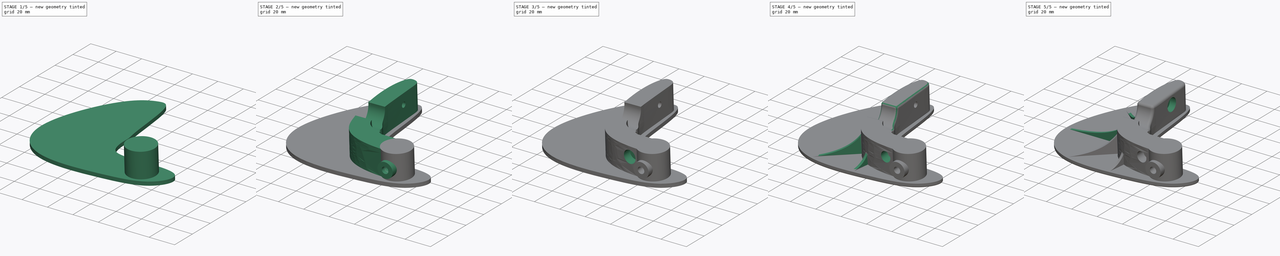
[diagram: build sequence overview — one tinted view per stage of 5, left to right]
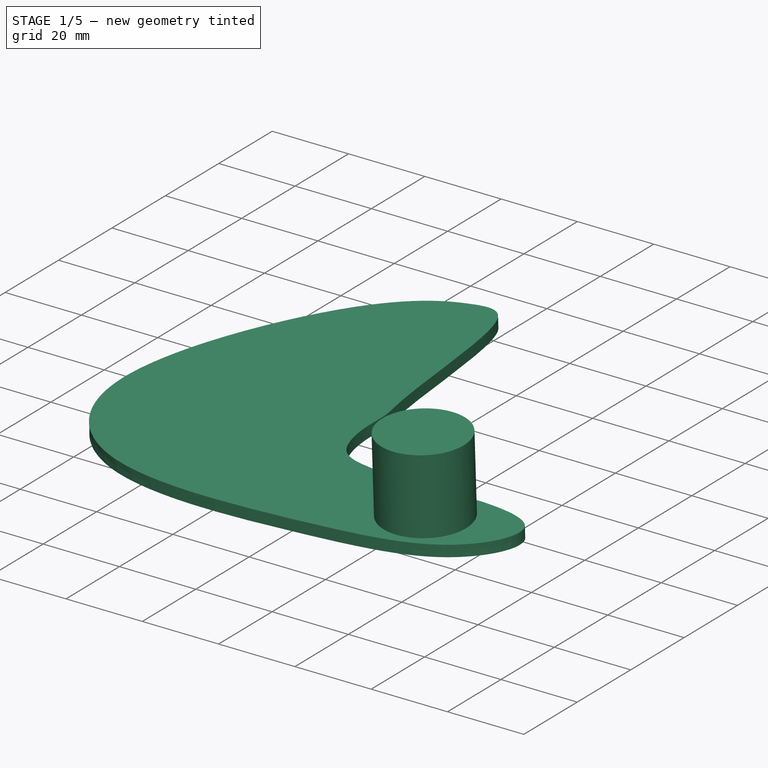
[diagram: stage 1 of 5 — iso view after this stage's code; geometry added in this stage tinted green]
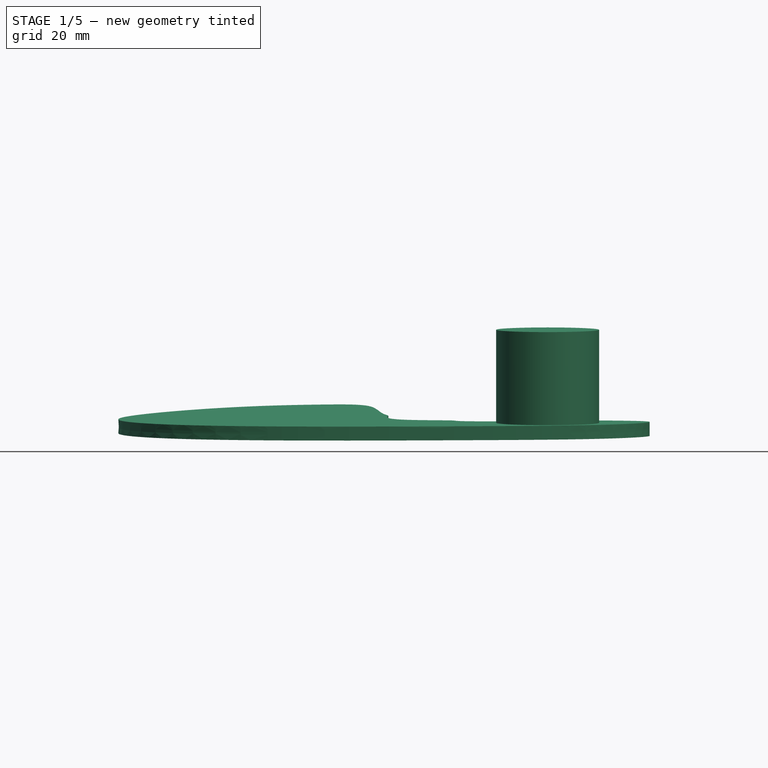
[diagram: stage 1 of 5 — front view after this stage's code; geometry added in this stage tinted green]
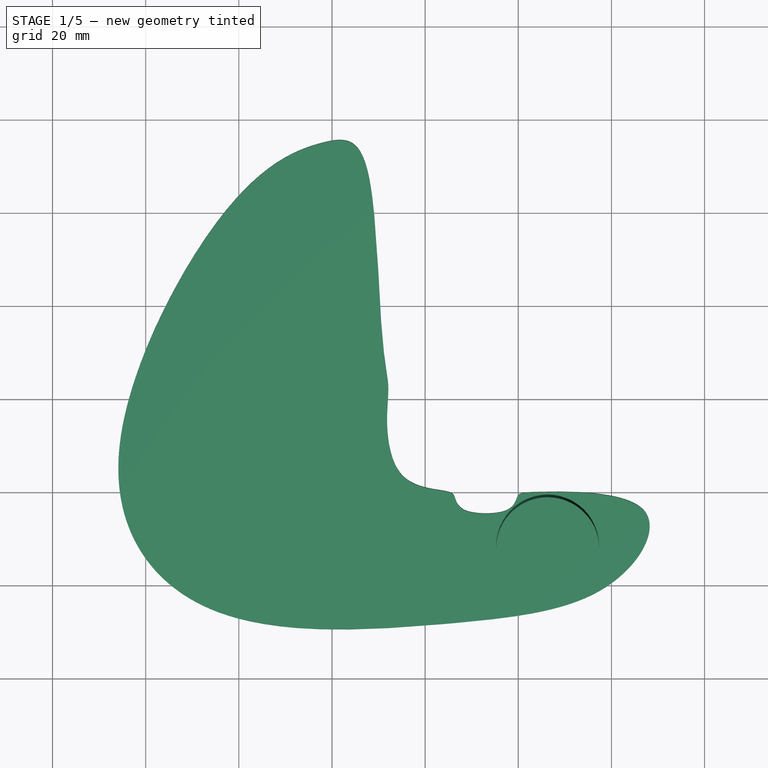
[diagram: stage 1 of 5 — top view after this stage's code; geometry added in this stage tinted green]
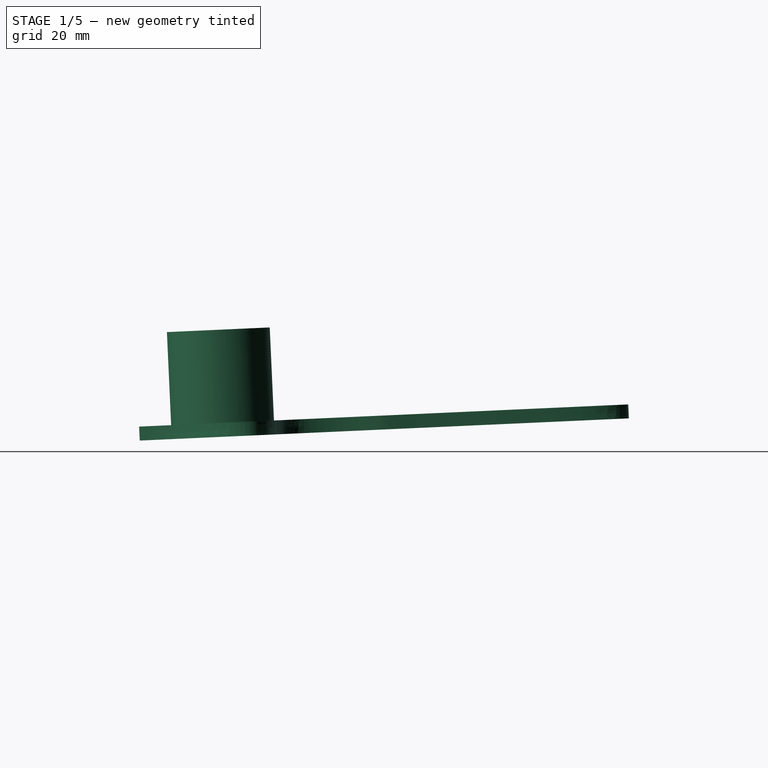
[diagram: stage 1 of 5 — right view after this stage's code; geometry added in this stage tinted green]
FCSTD DOCUMENT  (FreeCAD 0.19R24291 (Git))
Label: mezzo_pulpito
License: All rights reserved
LicenseURL: http://en.wikipedia.org/wiki/All_rights_reserved
objects: Sketcher::SketchObject×16, PartDesign::Plane×11, PartDesign::Pad×9, PartDesign::Pocket×6, PartDesign::ShapeBinder×4, PartDesign::Hole×2, Part::Feature×1, PartDesign::Fillet×1, PartDesign::Chamfer×1, PartDesign::Body×1, App::MeasureDistance×1
note: 71 computed .brp shape members not serialized (recipe doc carries the construction recipe); baked Part::Feature solids carry a one-line shape summary decoded from their .brp

FEATURE [Part::Feature] Part__Feature  label="Taranis_X9D"
  shape: bbox 579.6 x 653.2 x 579.6 mm, 3904 faces, 35 solids (baked)
FEATURE [PartDesign::ShapeBinder] CopyPart__Feature
  TraceSupport = false
FEATURE [PartDesign::ShapeBinder] CopyPart__Feature001
  TraceSupport = false
FEATURE [PartDesign::Plane] DatumPlane
  Length = 136.732
  MapMode = 45
  Placement = pos=(0,76.6965,-46.0705) rot=(0.022662,-0.022662,0.999486;1.57131rad)
  ResizeMode = 0
  Support = -> [CopyPart__Feature,CopyPart__Feature001]
  Width = 198.196
FEATURE [Sketcher::SketchObject] Sketch
  FullyConstrained = false
  MapMode = 5
  Placement = pos=(0,76.6965,-46.0705) rot=(0.022662,-0.022662,0.999486;1.57131rad)
  Support = -> [DatumPlane]
  sketch-geometry (38):
    g0-g17: Circle x18 (B-spline internal-alignment scaffolding for g18; pole/knot coordinates omitted)
    g18: BSplineCurve PolesCount=18 KnotsCount=19 Degree=3 IsPeriodic=1
    g19-g37: GeomPoint x19 (B-spline internal-alignment scaffolding for g18; pole/knot coordinates omitted)
  constraints (4):
    c: Weight(g0) = 1
    c: Equal(g0, g1-g17) x17
    c: InternalAlignment(g0-g17 -> g18) x18
    c: InternalAlignment(g19-g37 -> g18) x19
FEATURE [PartDesign::Pad] Pad
  AllowMultiFace = false
  Direction = (1,1,1)
  Length = 3
  Length2 = 100
  Placement = pos=(0,76.6965,-46.0705) rot=(0.022662,-0.022662,0.999486;1.57131rad)
  Profile = -> Sketch
  Type = 0
FEATURE [Sketcher::SketchObject] Sketch001
  FullyConstrained = false
  MapMode = 5
  Placement = pos=(0,76.6965,-46.0705) rot=(0.707016,0.707016,0.01603;3.17365rad)
  Support = -> [Pad]
  sketch-geometry (2):
    g0: Circle CenterX=-88.2214 CenterY=-53.695 CenterZ=0 NormalX=0 NormalY=0 NormalZ=1 AngleXU=0 Radius=5.1
    g1: Circle CenterX=-88.2214 CenterY=-53.695 CenterZ=0 NormalX=0 NormalY=0 NormalZ=1 AngleXU=0 Radius=11.0502
  constraints (2):
    c: Radius(g0) = 5.1
    c: Coincident(g1,g0)
FEATURE [PartDesign::Hole] Hole
  AllowMultiFace = false
  BaseFeature = -> Pad
  Depth = 25
  DepthType = 0
  Diameter = 10.2
  DrillForDepth = false
  DrillPoint = 1
  DrillPointAngle = 118
  HoleCutCountersinkAngle = 90
  HoleCutCustomValues = false
  HoleCutDepth = 0
  HoleCutDiameter = 0
  HoleCutType = 0
  ModelActualThread = false
  Placement = pos=(0,76.6965,-46.0705) rot=(0.022662,-0.022662,0.999486;1.57131rad)
  Profile = -> Sketch001
  Tapered = false
  TaperedAngle = 90
  ThreadAngle = 0
  ThreadClass = 0
  ThreadCutOffInner = 0
  ThreadCutOffOuter = 0
  ThreadDirection = 0
  ThreadFit = 0
  ThreadPitch = 0
  ThreadSize = 0
  ThreadType = 0
  Threaded = false
FEATURE [PartDesign::Pad] Pad001
  AllowMultiFace = false
  BaseFeature = -> Hole
  Direction = (1,1,1)
  Length = 20
  Length2 = 100
  Placement = pos=(0,76.6965,-46.0705) rot=(0.022662,-0.022662,0.999486;1.57131rad)
  Profile = -> Sketch001
  Reversed = true
  Type = 0
FEATURE [Sketcher::SketchObject] Sketch002
  ExternalGeometry = -> [Pad001]
  FullyConstrained = false
  MapMode = 5
  Placement = pos=(-2e-16,75.7901,-26.0911) rot=(0.022662,-0.022662,0.999486;1.57131rad)
  Support = -> [Pad001]
  sketch-geometry (1):
    g0: Circle CenterX=-88.2214 CenterY=53.695 CenterZ=0 NormalX=0 NormalY=0 NormalZ=1 AngleXU=0 Radius=11.0502
  constraints (2):
    c: Coincident(g0,g-3)
    c: Equal(g0,g-4)
FEATURE [PartDesign::Pad] Pad002
  AllowMultiFace = false
  BaseFeature = -> Pad001
  Direction = (1,1,1)
  Length = 3
  Length2 = 100
  Placement = pos=(0,76.6965,-46.0705) rot=(0.022662,-0.022662,0.999486;1.57131rad)
  Profile = -> Sketch002
  Type = 0
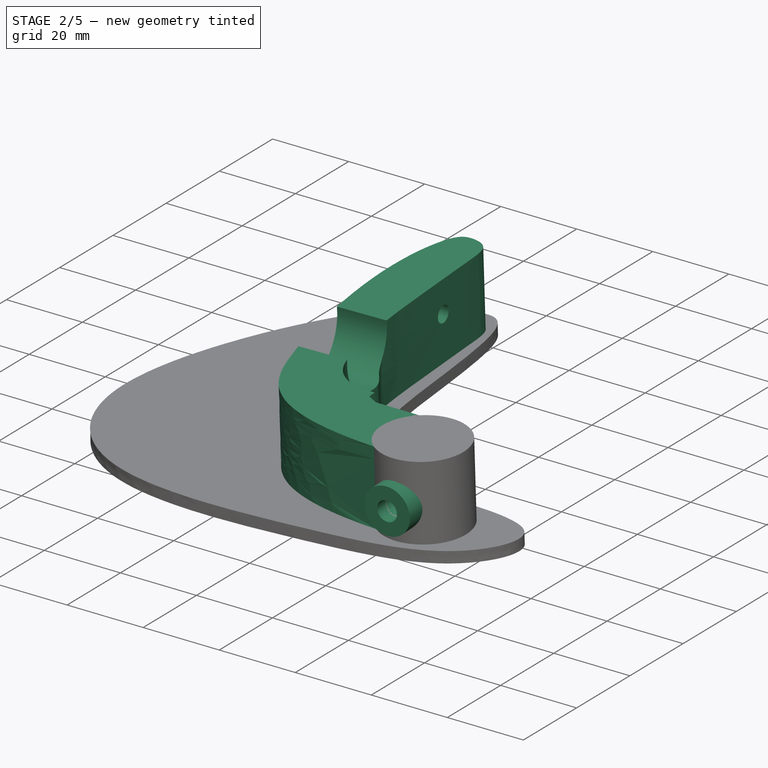
[diagram: stage 2 of 5 — iso view after this stage's code; geometry added in this stage tinted green]
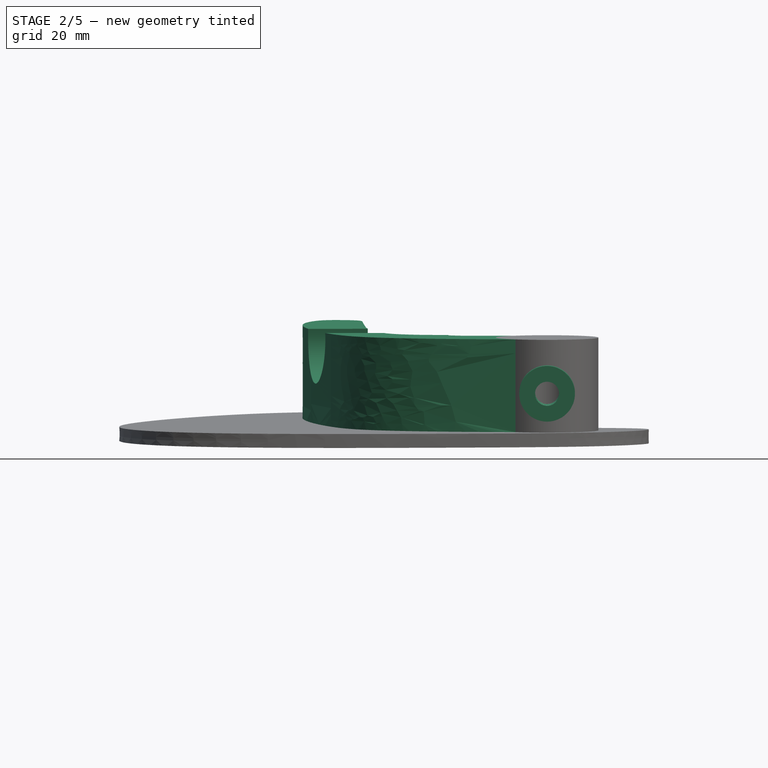
[diagram: stage 2 of 5 — front view after this stage's code; geometry added in this stage tinted green]
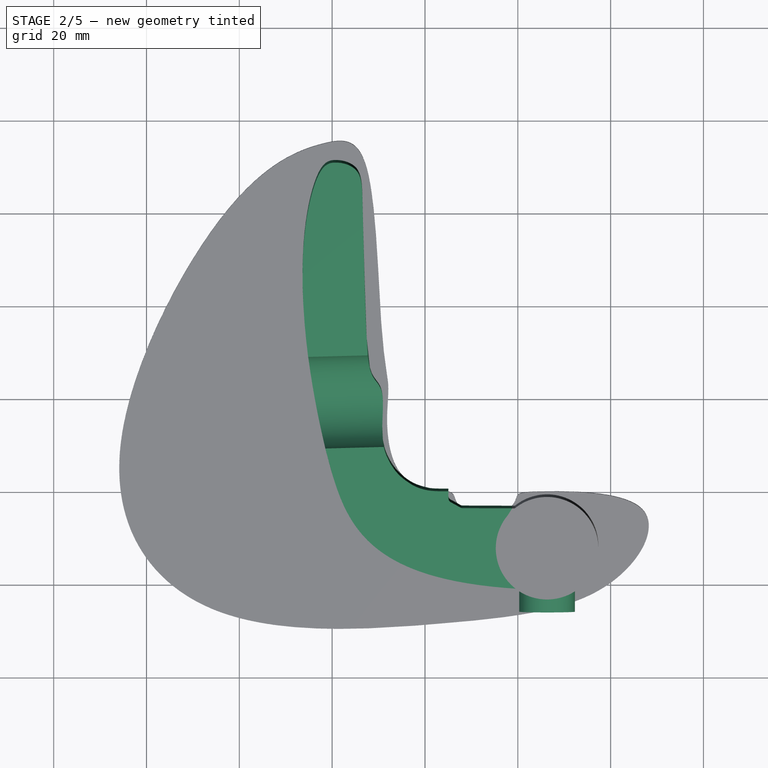
[diagram: stage 2 of 5 — top view after this stage's code; geometry added in this stage tinted green]
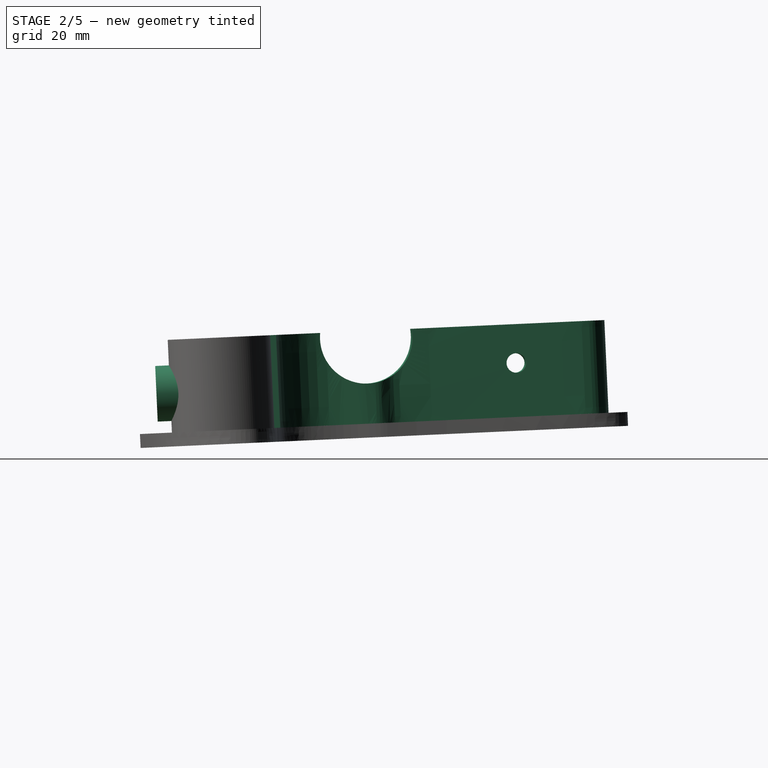
[diagram: stage 2 of 5 — right view after this stage's code; geometry added in this stage tinted green]
FEATURE [PartDesign::Plane] DatumPlane001
  AttachmentOffset = pos=(0,-6,0) rot=(1,0,0;1.5708rad)
  Length = 194.325
  MapMode = 45
  Placement = pos=(-53.695,-17.9493,-38.8527) rot=(1,0,0;1.61614rad)
  ResizeMode = 0
  Support = -> [Pad002]
  Width = 104.082
FEATURE [Sketcher::SketchObject] Sketch003
  FullyConstrained = true
  MapMode = 5
  Placement = pos=(-53.695,-17.9493,-38.8527) rot=(1,0,0;1.61614rad)
  Support = -> [DatumPlane001]
  sketch-geometry (2):
    g0: Circle CenterX=0 CenterY=0 CenterZ=0 NormalX=0 NormalY=0 NormalZ=1 AngleXU=0 Radius=6
    g1: Circle CenterX=0 CenterY=0 CenterZ=0 NormalX=0 NormalY=0 NormalZ=1 AngleXU=0 Radius=2.6
  constraints (4):
    c: Coincident(g0,g-1)
    c: Coincident(g1,g0)
    c: Radius(g0) = 6
    c: Radius(g1) = 2.6
FEATURE [PartDesign::Pad] Pad003
  AllowMultiFace = false
  BaseFeature = -> Pad002
  Direction = (1,1,1)
  Length = 8
  Length2 = 100
  Placement = pos=(0,76.6965,-46.0705) rot=(0.022662,-0.022662,0.999486;1.57131rad)
  Profile = -> Sketch003
  Type = 0
FEATURE [PartDesign::Pocket] Pocket
  AllowMultiFace = false
  BaseFeature = -> Pad003
  Length = 10
  Length2 = 100
  Placement = pos=(0,76.6965,-46.0705) rot=(0.022662,-0.022662,0.999486;1.57131rad)
  Profile = -> Pad003 [Face15]
  Type = 0
FEATURE [Sketcher::SketchObject] Sketch004
  FullyConstrained = false
  MapMode = 5
  Placement = pos=(1e-16,76.5606,-43.0736) rot=(0.022662,-0.022662,0.999486;1.57131rad)
  Support = -> [Pad003]
  sketch-geometry (61):
    g0: LineSegment StartX=-79.6202 StartY=59.9978 StartZ=0 EndX=-79.6202 EndY=61.2114 EndZ=0
    g1: Circle CenterX=-79.6202 CenterY=61.2114 CenterZ=0 NormalX=0 NormalY=0 NormalZ=1 AngleXU=0 Radius=1
    g2: Circle CenterX=-79.5852 CenterY=64.6616 CenterZ=0 NormalX=0 NormalY=0 NormalZ=1 AngleXU=0 Radius=1
    g3: Circle CenterX=-79.581 CenterY=71.4159 CenterZ=0 NormalX=0 NormalY=0 NormalZ=1 AngleXU=0 Radius=1
    g4: BSplineCurve PolesCount=3 KnotsCount=2 Degree=2 IsPeriodic=0
    g5: GeomPoint X=-79.6202 Y=61.2114 Z=0
    g6: GeomPoint X=-79.581 Y=71.4159 Z=0
    g7: LineSegment StartX=-96.9647 StartY=59.9978 StartZ=0 EndX=-79.6202 EndY=59.9978 EndZ=0
    g8: LineSegment StartX=-79.5025 StartY=72.2644 StartZ=0 EndX=-78.4214 EndY=74.2117 EndZ=0
    g9: Circle CenterX=-78.4214 CenterY=74.2117 CenterZ=0 NormalX=0 NormalY=0 NormalZ=1 AngleXU=0 Radius=0.08
    g10: Circle CenterX=-77.4826 CenterY=74.9581 CenterZ=0 NormalX=0 NormalY=0 NormalZ=1 AngleXU=0 Radius=0.08
    g11: LineSegment StartX=-77.4826 StartY=74.9581 StartZ=0 EndX=-75.9318 EndY=74.9543 EndZ=0
    g12: LineSegment StartX=-75.9318 StartY=74.9543 StartZ=0 EndX=-75.9318 EndY=76.6216 EndZ=0
    g13: Circle CenterX=-78.4214 CenterY=74.2117 CenterZ=0 NormalX=0 NormalY=0 NormalZ=1 AngleXU=0 Radius=1
    g14: Circle CenterX=-78.1398 CenterY=74.9293 CenterZ=0 NormalX=0 NormalY=0 NormalZ=1 AngleXU=0 Radius=1
    g15: Circle CenterX=-77.4826 CenterY=74.9581 CenterZ=0 NormalX=0 NormalY=0 NormalZ=1 AngleXU=0 Radius=1
    g16: BSplineCurve PolesCount=3 KnotsCount=2 Degree=2 IsPeriodic=0
    g17: GeomPoint X=-78.4214 Y=74.2117 Z=0
    g18: GeomPoint X=-77.4826 Y=74.9581 Z=0
    g19-g22: Circle x4 (B-spline internal-alignment scaffolding for g23; pole/knot coordinates omitted)
    g23: BSplineCurve PolesCount=4 KnotsCount=2 Degree=3 IsPeriodic=0
    g24: GeomPoint X=-79.581 Y=71.4159 Z=0
    g25: GeomPoint X=-79.5025 Y=72.2644 Z=0
    g26-g43: Circle x18 (B-spline internal-alignment scaffolding for g44; pole/knot coordinates omitted)
    g44: BSplineCurve PolesCount=18 KnotsCount=16 Degree=3 IsPeriodic=0
    g45-g60: GeomPoint x16 (B-spline internal-alignment scaffolding for g44; pole/knot coordinates omitted)
  constraints (43):
    c: Vertical(g0)
    c: Coincident(g4,g0)
    c: Weight(g1) = 1
    c: Equal(g1,g2)
    c: Equal(g1,g3)
    c: InternalAlignment(g1,g4)
    c: InternalAlignment(g2,g4)
    c: InternalAlignment(g3,g4)
    c: InternalAlignment(g5,g4)
    c: InternalAlignment(g6,g4)
    c: Coincident(g7,g0)
    c: Horizontal(g7)
    c: Coincident(g9,g8)
    c: Radius(g9) = 0.08
    c: Equal(g9,g10)
    c: Coincident(g11,g10)
    c: Coincident(g11,g12)
    c: Vertical(g12)
    c: Coincident(g16,g8)
    c: Weight(g13) = 1
    c: Equal(g13,g14)
    c: Equal(g13,g15)
    c: Coincident(g16,g11)
    c: InternalAlignment(g13,g16)
    c: InternalAlignment(g14,g16)
    c: InternalAlignment(g15,g16)
    c: InternalAlignment(g17,g16)
    c: InternalAlignment(g18,g16)
    c: Coincident(g23,g4)
    c: Weight(g19) = 1
    c: Equal(g19,g20)
    c: Equal(g19,g21)
    c: Equal(g19,g22)
    c: Coincident(g23,g8)
    c: InternalAlignment(g19-g22 -> g23) x4
    c: InternalAlignment(g24,g23)
    c: InternalAlignment(g25,g23)
    c: Weight(g26) = 1
    c: Equal(g26, g27-g43) x17
    c: Coincident(g44,g7)
    c: InternalAlignment(g26-g43 -> g44) x18
    c: InternalAlignment(g45-g60 -> g44) x16
    c: Coincident(g12,g44)
FEATURE [PartDesign::Pad] Pad004
  AllowMultiFace = false
  BaseFeature = -> Pocket
  Direction = (1,1,1)
  Length = 20
  Length2 = 100
  Placement = pos=(0,76.6965,-46.0705) rot=(0.022662,-0.022662,0.999486;1.57131rad)
  Profile = -> Sketch004
  Type = 0
FEATURE [PartDesign::ShapeBinder] CopyPart__Feature002
  TraceSupport = false
FEATURE [PartDesign::Plane] DatumPlane002
  AttachmentOffset = pos=(0,0,-10) rot=(0,0,1;0rad)
  Length = 95.8487
  MapMode = 45
  Placement = pos=(-102.922,51.3342,-32.5186) rot=(0.707377,0.013562,0.706706;3.1517rad)
  ResizeMode = 0
  Support = -> [CopyPart__Feature002]
  Width = 129.985
FEATURE [Sketcher::SketchObject] Sketch005
  FullyConstrained = false
  MapMode = 5
  Placement = pos=(-102.922,51.3342,-32.5186) rot=(0.707377,0.013562,0.706706;3.1517rad)
  Support = -> [DatumPlane002]
  sketch-geometry (2):
    g0: Circle CenterX=-0.04256 CenterY=-0.002853 CenterZ=0 NormalX=0 NormalY=0 NormalZ=1 AngleXU=0 Radius=2.1
    g1: Circle CenterX=5.11532 CenterY=32.4609 CenterZ=0 NormalX=0 NormalY=0 NormalZ=1 AngleXU=0 Radius=10
  constraints (2):
    c: Radius(g0) = 2.1
    c: Radius(g1) = 10
FEATURE [PartDesign::Pocket] Pocket001
  AllowMultiFace = false
  BaseFeature = -> Pad004
  Length = 5
  Length2 = 100
  Placement = pos=(0,76.6965,-46.0705) rot=(0.022662,-0.022662,0.999486;1.57131rad)
  Profile = -> Sketch005
  Type = 4
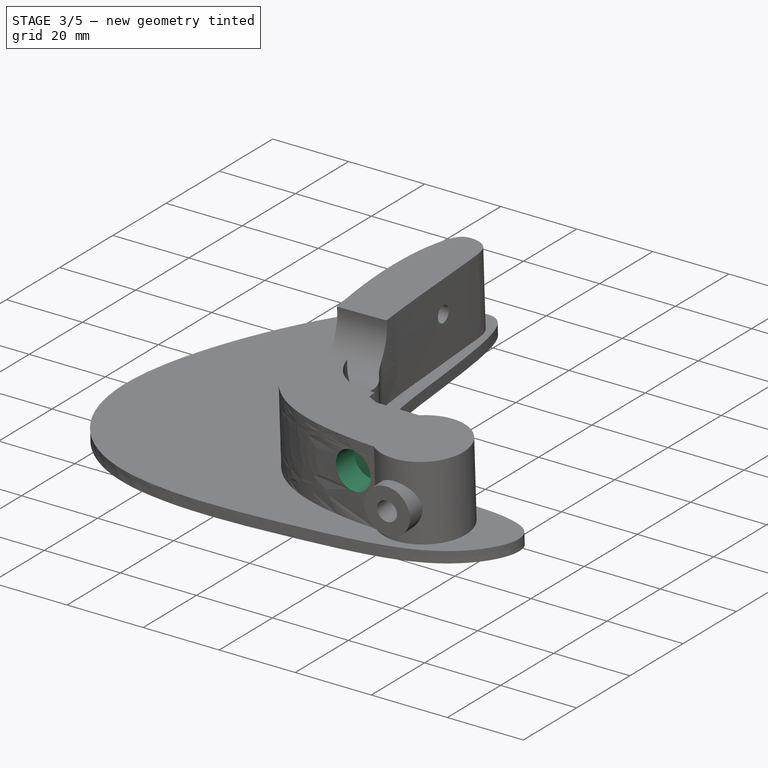
[diagram: stage 3 of 5 — iso view after this stage's code; geometry added in this stage tinted green]
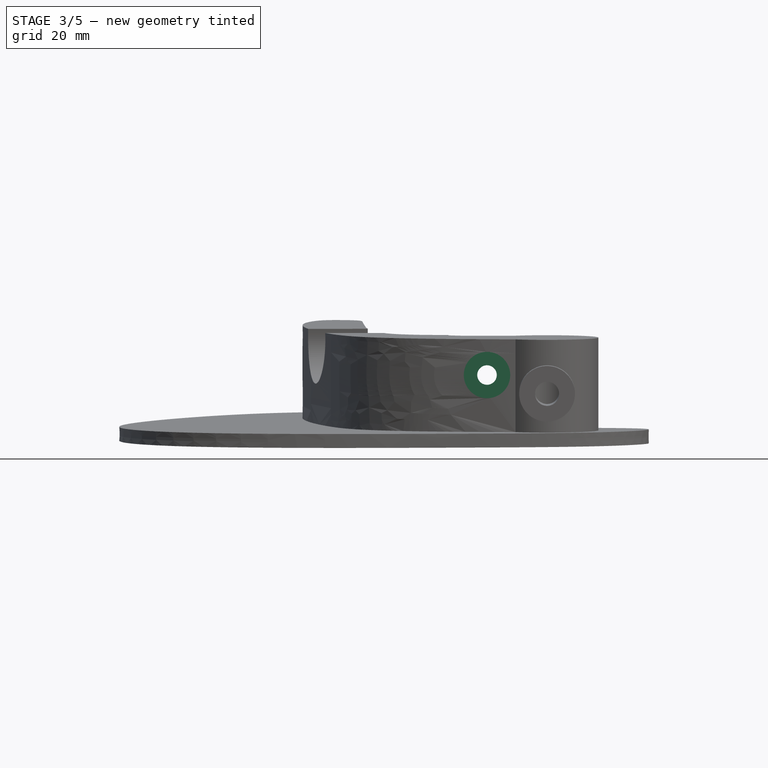
[diagram: stage 3 of 5 — front view after this stage's code; geometry added in this stage tinted green]
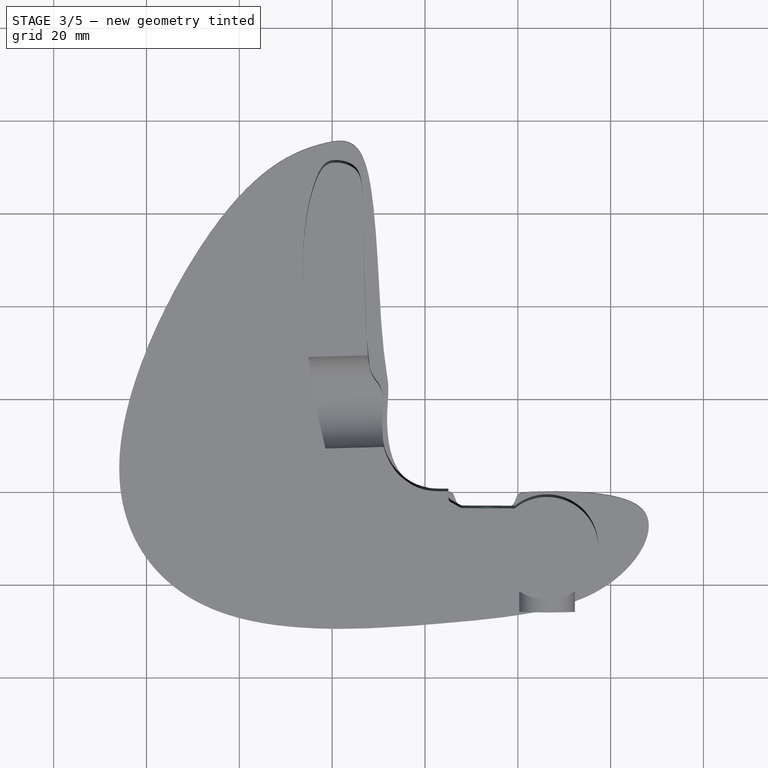
[diagram: stage 3 of 5 — top view after this stage's code; geometry added in this stage tinted green]
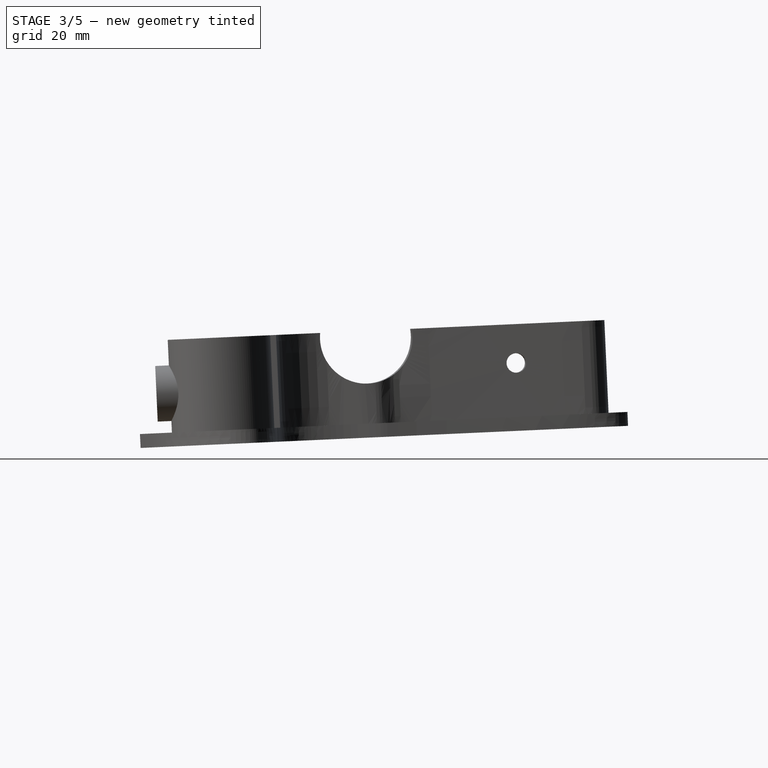
[diagram: stage 3 of 5 — right view after this stage's code; geometry added in this stage tinted green]
FEATURE [Sketcher::SketchObject] Sketch006
  FullyConstrained = false
  MapMode = 5
  Placement = pos=(-102.922,51.3342,-32.5186) rot=(0.707377,0.013562,0.706706;3.1517rad)
  Support = -> [DatumPlane002]
  sketch-geometry (1):
    g0: Circle CenterX=0.03682 CenterY=0.000535 CenterZ=0 NormalX=0 NormalY=0 NormalZ=1 AngleXU=0 Radius=5
  constraints (1):
    c: Radius(g0) = 5
FEATURE [PartDesign::Pocket] Pocket002
  AllowMultiFace = false
  BaseFeature = -> Pocket001
  Length = 5
  Length2 = 100
  Placement = pos=(0,76.6965,-46.0705) rot=(0.022662,-0.022662,0.999486;1.57131rad)
  Profile = -> Sketch006
  Type = 0
FEATURE [PartDesign::ShapeBinder] CopyPart__Feature003
  TraceSupport = false
FEATURE [PartDesign::Plane] DatumPlane003
  AttachmentOffset = pos=(0,0,10) rot=(0,0,1;0rad)
  Length = 193.626
  MapMode = 5
  Placement = pos=(0,-12.6364,-2.5e-15) rot=(1,0,0;1.5708rad)
  ResizeMode = 0
  Support = -> [CopyPart__Feature003]
  Width = 98.6541
FEATURE [Sketcher::SketchObject] Sketch007
  FullyConstrained = false
  MapMode = 5
  Placement = pos=(0,-12.6364,-2.5e-15) rot=(1,0,0;1.5708rad)
  Support = -> [DatumPlane003]
  sketch-geometry (1):
    g0: Circle CenterX=-66.6371 CenterY=-35.1715 CenterZ=0 NormalX=0 NormalY=0 NormalZ=1 AngleXU=0 Radius=5
  constraints (1):
    c: Radius(g0) = 5
FEATURE [PartDesign::Pocket] Pocket003
  AllowMultiFace = false
  BaseFeature = -> Pocket002
  Length = 10
  Length2 = 100
  Placement = pos=(0,76.6965,-46.0705) rot=(0.022662,-0.022662,0.999486;1.57131rad)
  Profile = -> Sketch007
  Reversed = true
  Type = 0
FEATURE [PartDesign::Hole] Hole001
  AllowMultiFace = false
  BaseFeature = -> Pocket003
  Depth = 25
  DepthType = 0
  Diameter = 4.2
  DrillForDepth = false
  DrillPoint = 1
  DrillPointAngle = 118
  HoleCutCountersinkAngle = 90
  HoleCutCustomValues = false
  HoleCutDepth = 0
  HoleCutDiameter = 0
  HoleCutType = 0
  ModelActualThread = false
  Placement = pos=(0,76.6965,-46.0705) rot=(0.022662,-0.022662,0.999486;1.57131rad)
  Profile = -> Sketch007
  Tapered = false
  TaperedAngle = 90
  ThreadAngle = 0
  ThreadClass = 0
  ThreadCutOffInner = 0
  ThreadCutOffOuter = 0
  ThreadDirection = 0
  ThreadFit = 0
  ThreadPitch = 0
  ThreadSize = 0
  ThreadType = 0
  Threaded = false
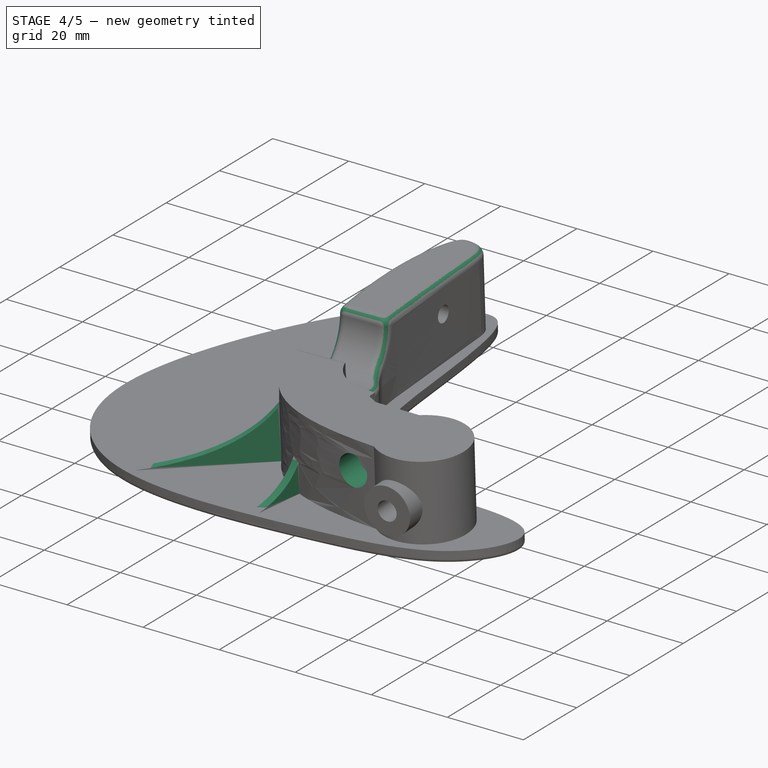
[diagram: stage 4 of 5 — iso view after this stage's code; geometry added in this stage tinted green]
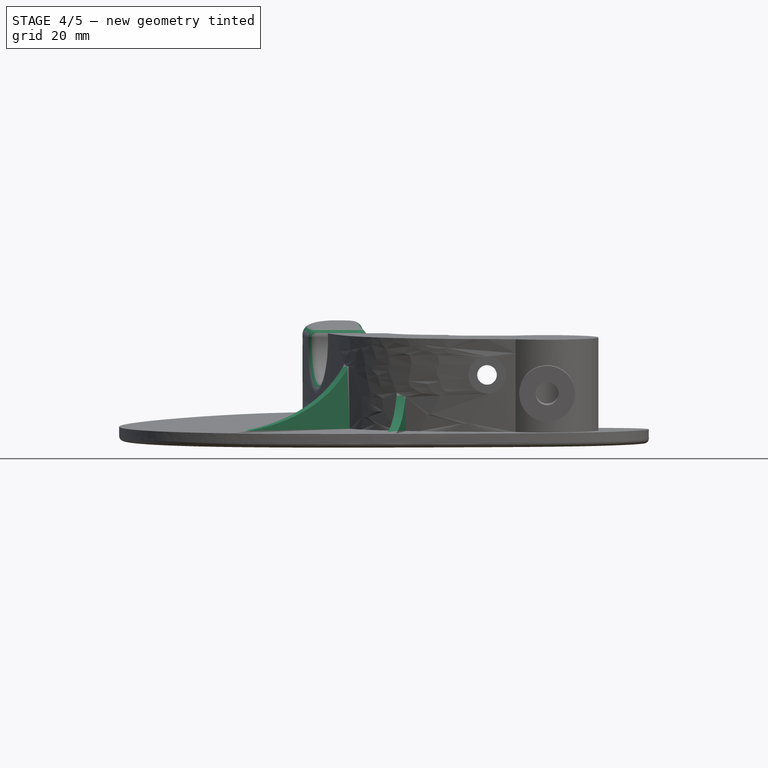
[diagram: stage 4 of 5 — front view after this stage's code; geometry added in this stage tinted green]
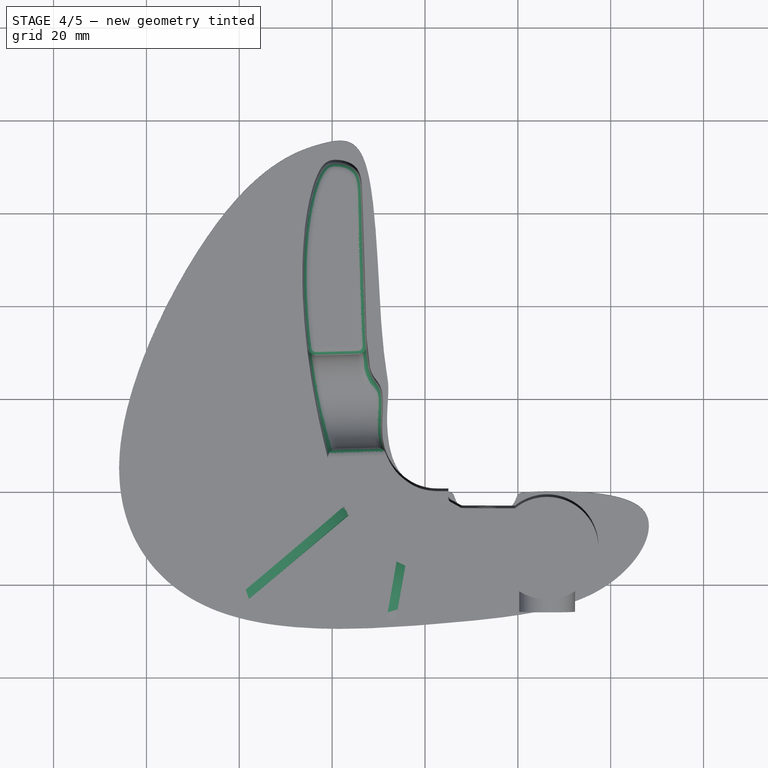
[diagram: stage 4 of 5 — top view after this stage's code; geometry added in this stage tinted green]
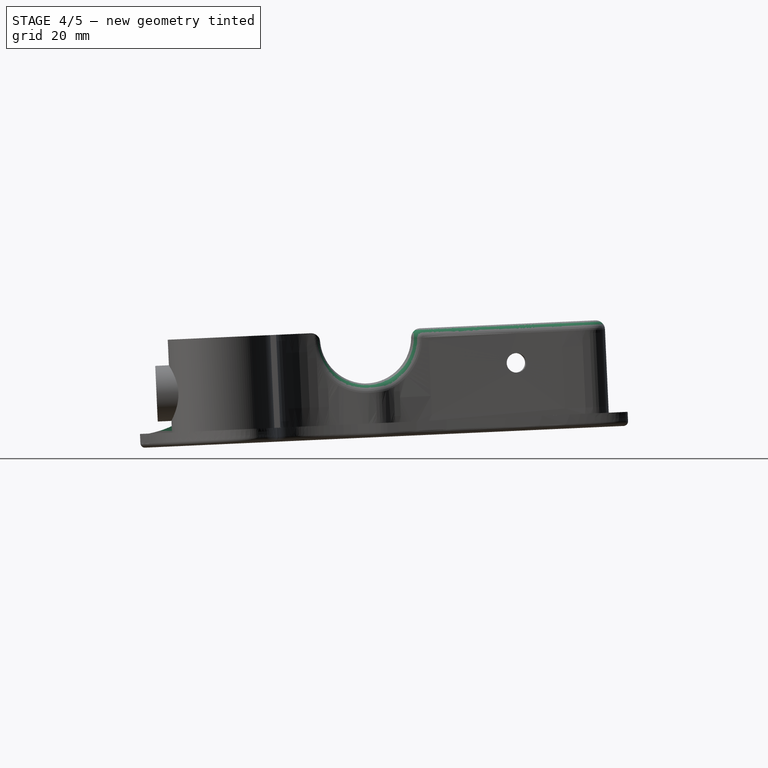
[diagram: stage 4 of 5 — right view after this stage's code; geometry added in this stage tinted green]
FEATURE [PartDesign::Fillet] Fillet001
  Base = -> Hole001 [Face2]
  BaseFeature = -> Hole001
  Placement = pos=(0,76.6965,-46.0705) rot=(0.022662,-0.022662,0.999486;1.57131rad)
  Radius = 1
  Refine = true
  SupportTransform = false
FEATURE [PartDesign::Chamfer] Chamfer
  Angle = 45
  Base = -> Fillet001 [Edge65,Edge66]
  BaseFeature = -> Fillet001
  ChamferType = 0
  FlipDirection = false
  Placement = pos=(0,76.6965,-46.0705) rot=(0.022662,-0.022662,0.999486;1.57131rad)
  Refine = true
  Size = 0.5
  Size2 = 1
  SupportTransform = false
FEATURE [Sketcher::SketchObject] Sketch008
  FullyConstrained = false
  MapMode = 5
  Placement = pos=(-2e-16,76.5606,-43.0736) rot=(0.707016,0.707016,0.01603;3.17365rad)
  Support = -> [Chamfer]
  sketch-geometry (4):
    g0: LineSegment StartX=-67.8192 StartY=79.8686 StartZ=0 EndX=-117.906 EndY=88.7003 EndZ=0
    g1: LineSegment StartX=-67.8192 StartY=79.8686 StartZ=0 EndX=-108.027 EndY=127.786 EndZ=0
    g2: LineSegment StartX=-67.8192 StartY=79.8686 StartZ=0 EndX=-67.8192 EndY=146.8 EndZ=0
    g3: LineSegment StartX=-67.8192 StartY=79.8686 StartZ=0 EndX=-22.9091 EndY=133.39 EndZ=0
  constraints (7):
    c: Coincident(g2,g1)
    c: Vertical(g2)
    c: Coincident(g3,g1)
    c: Coincident(g0,g1)
    c: Angle(g1,g0) = 0.698132
    c: Angle(g2,g1) = 0.698132
    c: Angle(g3,g2) = 0.698132
FEATURE [PartDesign::Plane] DatumPlane004
  AttachmentOffset = pos=(0,0,0) rot=(0,1,0;1.5708rad)
  Length = 158.598
  MapMode = 7
  Placement = pos=(79.8686,8.811,-46.1474) rot=(-0.651311,0.522095,0.550645;4.26218rad)
  ResizeMode = 0
  Support = -> [Sketch008]
  Width = 102.995
FEATURE [Sketcher::SketchObject] Sketch009
  FullyConstrained = false
  MapMode = 5
  Placement = pos=(79.8686,8.811,-46.1474) rot=(0.651311,-0.522095,-0.550645;2.02101rad)
  Support = -> [DatumPlane004]
  sketch-geometry (8):
    g0: Circle CenterX=36.9636 CenterY=0 CenterZ=0 NormalX=0 NormalY=0 NormalZ=1 AngleXU=0 Radius=1
    g1: Circle CenterX=27.0663 CenterY=1.57105 CenterZ=0 NormalX=0 NormalY=0 NormalZ=1 AngleXU=0 Radius=1
    g2: Circle CenterX=23.2759 CenterY=9.59432 CenterZ=0 NormalX=0 NormalY=0 NormalZ=1 AngleXU=0 Radius=1
    g3: BSplineCurve PolesCount=3 KnotsCount=2 Degree=2 IsPeriodic=0
    g4: GeomPoint X=36.9636 Y=0 Z=0
    g5: GeomPoint X=23.2759 Y=9.59432 Z=0
    g6: LineSegment StartX=36.9636 StartY=0 StartZ=0 EndX=23.2759 EndY=0 EndZ=0
    g7: LineSegment StartX=23.2759 StartY=0 StartZ=0 EndX=23.2759 EndY=9.59432 EndZ=0
  constraints (14):
    c: PointOnObject(g3,g-1)
    c: Weight(g0) = 1
    c: Equal(g0,g1)
    c: Equal(g0,g2)
    c: InternalAlignment(g0,g3)
    c: InternalAlignment(g1,g3)
    c: InternalAlignment(g2,g3)
    c: InternalAlignment(g4,g3)
    c: InternalAlignment(g5,g3)
    c: PointOnObject(g6,g-1)
    c: Horizontal(g6)
    c: Coincident(g6,g7)
    c: Vertical(g7)
    c: Coincident(g3,g7)
FEATURE [PartDesign::Pad] Pad005
  AllowMultiFace = false
  BaseFeature = -> Chamfer
  Direction = (1,1,1)
  Length = 2
  Length2 = 100
  Placement = pos=(0,76.6965,-46.0705) rot=(0.022662,-0.022662,0.999486;1.57131rad)
  Profile = -> Sketch009
  Type = 0
FEATURE [PartDesign::Plane] DatumPlane005
  AttachmentOffset = pos=(0,0,0) rot=(0,1,0;1.5708rad)
  Length = 244.598
  MapMode = 7
  Placement = pos=(79.8686,8.811,-46.1474) rot=(-0.890105,0.30911,0.33491;4.58572rad)
  ResizeMode = 0
  Support = -> [Sketch008]
  Width = 108.327
FEATURE [Sketcher::SketchObject] Sketch010
  FullyConstrained = false
  MapMode = 5
  Placement = pos=(79.8686,8.811,-46.1474) rot=(0.890105,-0.30911,-0.33491;1.69747rad)
  Support = -> [DatumPlane005]
  sketch-geometry (8):
    g0: Circle CenterX=53.1423 CenterY=0 CenterZ=0 NormalX=0 NormalY=0 NormalZ=1 AngleXU=0 Radius=4
    g1: Circle CenterX=29.2585 CenterY=1.8725 CenterZ=0 NormalX=0 NormalY=0 NormalZ=1 AngleXU=0 Radius=4
    g2: Circle CenterX=20.2771 CenterY=14.6024 CenterZ=0 NormalX=0 NormalY=0 NormalZ=1 AngleXU=0 Radius=4
    g3: BSplineCurve PolesCount=3 KnotsCount=2 Degree=2 IsPeriodic=0
    g4: GeomPoint X=53.1423 Y=0 Z=0
    g5: GeomPoint X=25.4467 Y=13.9363 Z=0
    g6: LineSegment StartX=53.1423 StartY=0 StartZ=0 EndX=20.2771 EndY=0 EndZ=0
    g7: LineSegment StartX=20.2771 StartY=14.6024 StartZ=0 EndX=20.2771 EndY=0 EndZ=0
  constraints (13):
    c: PointOnObject(g3,g-1)
    c: Weight(g0) = 1
    c: Equal(g0,g1)
    c: Equal(g0,g2)
    c: InternalAlignment(g0,g3)
    c: InternalAlignment(g1,g3)
    c: InternalAlignment(g2,g3)
    c: InternalAlignment(g4,g3)
    c: Horizontal(g6)
    c: Coincident(g7,g6)
    c: Vertical(g7)
    c: Coincident(g7,g3)
    c: Coincident(g6,g3)
FEATURE [PartDesign::Pad] Pad006
  AllowMultiFace = false
  BaseFeature = -> Pad005
  Direction = (1,1,1)
  Length = 2
  Length2 = 100
  Placement = pos=(0,76.6965,-46.0705) rot=(0.022662,-0.022662,0.999486;1.57131rad)
  Profile = -> Sketch010
  Type = 0
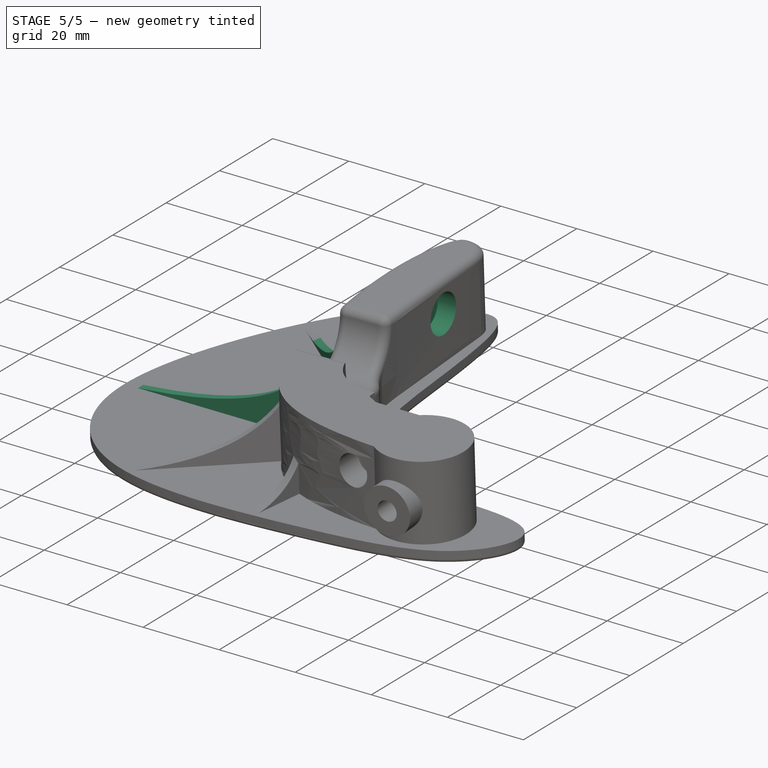
[diagram: stage 5 of 5 — iso view after this stage's code; geometry added in this stage tinted green]
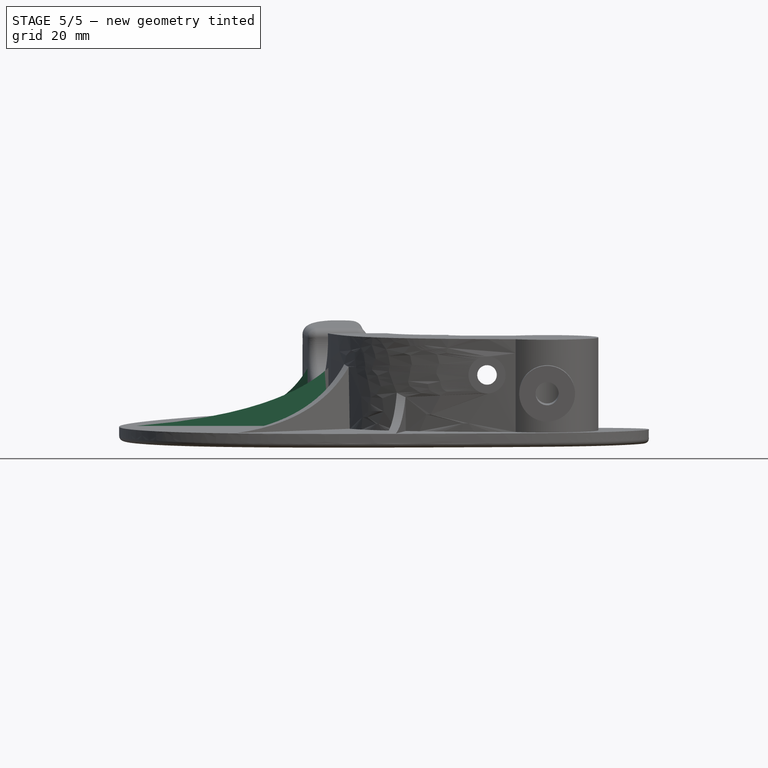
[diagram: stage 5 of 5 — front view after this stage's code; geometry added in this stage tinted green]
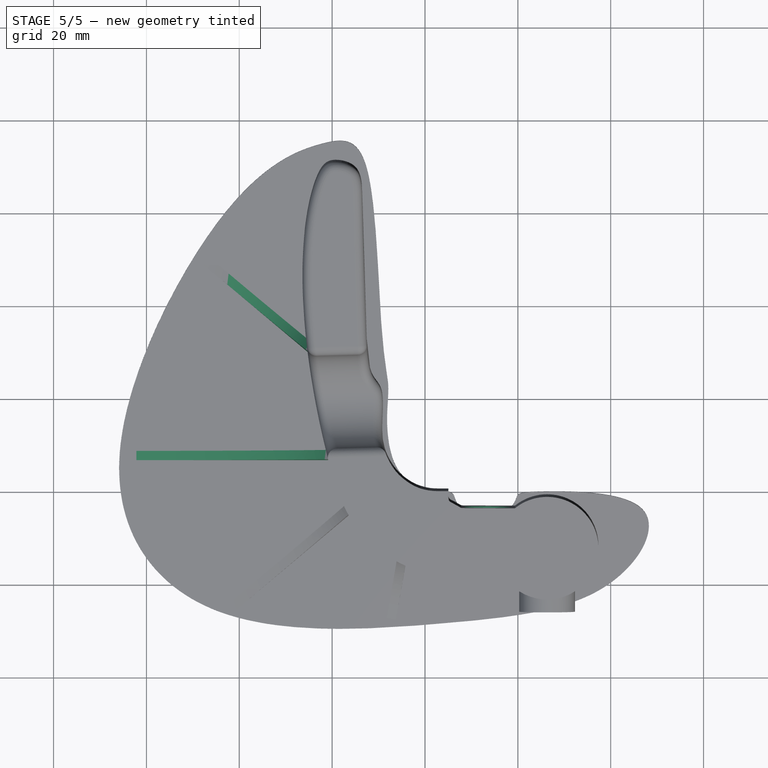
[diagram: stage 5 of 5 — top view after this stage's code; geometry added in this stage tinted green]
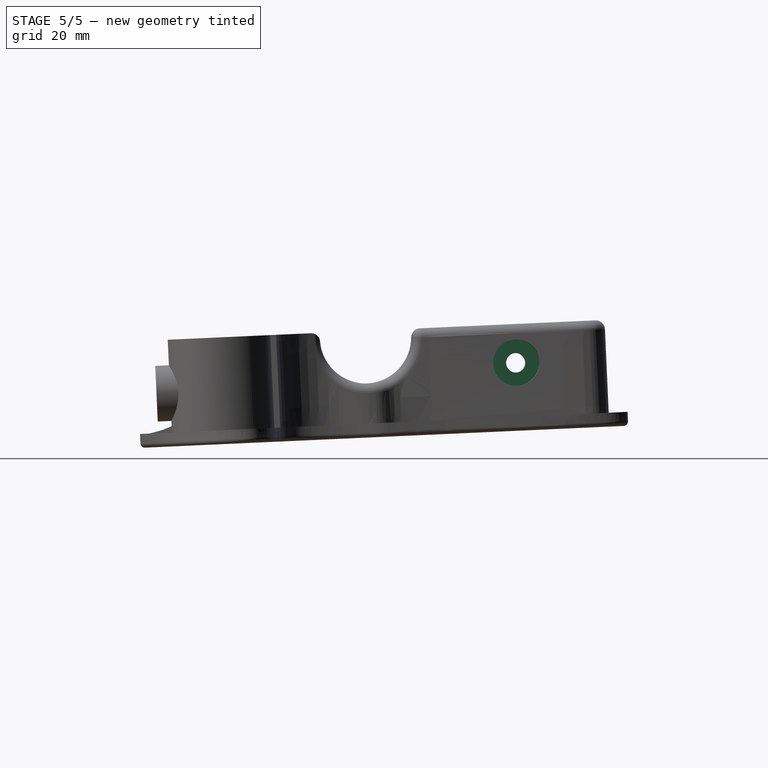
[diagram: stage 5 of 5 — right view after this stage's code; geometry added in this stage tinted green]
FEATURE [PartDesign::Plane] DatumPlane006
  AttachmentOffset = pos=(0,0,0) rot=(0,1,0;1.5708rad)
  Length = 251.898
  MapMode = 7
  Placement = pos=(79.8686,8.811,-46.1474) rot=(-1,0,0;4.71239rad)
  ResizeMode = 0
  Support = -> [Sketch008]
  Width = 102.057
FEATURE [Sketcher::SketchObject] Sketch011
  FullyConstrained = false
  MapMode = 5
  Placement = pos=(79.8686,8.811,-46.1474) rot=(1,0,0;1.5708rad)
  Support = -> [DatumPlane006]
  sketch-geometry (8):
    g0: Circle CenterX=62.2843 CenterY=0 CenterZ=0 NormalX=0 NormalY=0 NormalZ=1 AngleXU=0 Radius=6
    g1: Circle CenterX=31.1229 CenterY=2.46473 CenterZ=0 NormalX=0 NormalY=0 NormalZ=1 AngleXU=0 Radius=6
    g2: Circle CenterX=20.2678 CenterY=13.1434 CenterZ=0 NormalX=0 NormalY=0 NormalZ=1 AngleXU=0 Radius=6
    g3: BSplineCurve PolesCount=3 KnotsCount=2 Degree=2 IsPeriodic=0
    g4: GeomPoint X=62.2843 Y=0 Z=0
    g5: GeomPoint X=20.2678 Y=13.1434 Z=0
    g6: LineSegment StartX=20.2678 StartY=13.1434 StartZ=0 EndX=20.3343 EndY=0 EndZ=0
    g7: LineSegment StartX=20.3343 StartY=0 StartZ=0 EndX=62.2843 EndY=0 EndZ=0
  constraints (13):
    c: PointOnObject(g3,g-1)
    c: Weight(g0) = 1
    c: Equal(g0,g1)
    c: Equal(g0,g2)
    c: InternalAlignment(g0,g3)
    c: InternalAlignment(g1,g3)
    c: InternalAlignment(g2,g3)
    c: InternalAlignment(g4,g3)
    c: InternalAlignment(g5,g3)
    c: Coincident(g6,g3)
    c: Coincident(g7,g3)
    c: Horizontal(g7)
    c: Coincident(g7,g6)
FEATURE [PartDesign::Pad] Pad007
  AllowMultiFace = false
  BaseFeature = -> Pad006
  Direction = (1,1,1)
  Length = 2
  Length2 = 100
  Placement = pos=(0,76.6965,-46.0705) rot=(0.022662,-0.022662,0.999486;1.57131rad)
  Profile = -> Sketch011
  Reversed = true
  Type = 0
FEATURE [PartDesign::Plane] DatumPlane007
  AttachmentOffset = pos=(0,0,0) rot=(0,1,0;1.5708rad)
  Length = 226.83
  MapMode = 7
  Placement = pos=(79.8686,8.811,-46.1474) rot=(0.890105,0.30911,0.33491;1.69747rad)
  ResizeMode = 0
  Support = -> [Sketch008]
  Width = 107.283
FEATURE [Sketcher::SketchObject] Sketch012
  FullyConstrained = false
  MapMode = 5
  Placement = pos=(79.8686,8.811,-46.1474) rot=(0.890105,0.30911,0.33491;1.69747rad)
  Support = -> [DatumPlane007]
  sketch-geometry (8):
    g0: LineSegment StartX=63.1969 StartY=0 StartZ=0 EndX=32.6542 EndY=0 EndZ=0
    g1: LineSegment StartX=32.6542 StartY=0 StartZ=0 EndX=32.6542 EndY=12.7544 EndZ=0
    g2: Circle CenterX=32.6542 CenterY=12.7544 CenterZ=0 NormalX=0 NormalY=0 NormalZ=1 AngleXU=0 Radius=2
    g3: Circle CenterX=40.5534 CenterY=0.0128824 CenterZ=0 NormalX=0 NormalY=0 NormalZ=1 AngleXU=0 Radius=2
    g4: Circle CenterX=63.1969 CenterY=0 CenterZ=0 NormalX=0 NormalY=0 NormalZ=1 AngleXU=0 Radius=2
    g5: BSplineCurve PolesCount=3 KnotsCount=2 Degree=2 IsPeriodic=0
    g6: GeomPoint X=32.6542 Y=12.7544 Z=0
    g7: GeomPoint X=63.1969 Y=0 Z=0
  constraints (14):
    c: PointOnObject(g0,g-1)
    c: Horizontal(g0)
    c: Vertical(g1)
    c: Coincident(g1,g0)
    c: Coincident(g5,g1)
    c: Weight(g2) = 1
    c: Equal(g2,g3)
    c: Equal(g2,g4)
    c: Coincident(g5,g0)
    c: InternalAlignment(g2,g5)
    c: InternalAlignment(g3,g5)
    c: InternalAlignment(g4,g5)
    c: InternalAlignment(g6,g5)
    c: InternalAlignment(g7,g5)
FEATURE [PartDesign::Pad] Pad008
  AllowMultiFace = false
  BaseFeature = -> Pad007
  Direction = (1,1,1)
  Length = 2
  Length2 = 100
  Placement = pos=(0,76.6965,-46.0705) rot=(0.022662,-0.022662,0.999486;1.57131rad)
  Profile = -> Sketch012
  Type = 0
FEATURE [PartDesign::Plane] DatumPlane008
  Length = 194.888
  MapMode = 45
  Placement = pos=(-66.29,-3.3995,-36.8021) rot=(-0.999996,0.002594,-0.001013;1.52545rad)
  ResizeMode = 0
  Support = -> [Pad008]
  Width = 104.404
FEATURE [PartDesign::Plane] DatumPlane009
  Length = 194.888
  MapMode = 45
  Placement = pos=(-66.29,-3.3995,-36.8021) rot=(-0.999996,0.002594,-0.001013;1.52545rad)
  ResizeMode = 0
  Support = -> [Pad008]
  Width = 104.404
FEATURE [Sketcher::SketchObject] Sketch013
  FullyConstrained = true
  MapMode = 5
  Placement = pos=(-66.29,-3.3995,-36.8021) rot=(-0.999996,0.002594,-0.001013;1.52545rad)
  Support = -> [DatumPlane009]
FEATURE [Sketcher::SketchObject] Sketch014
  ExternalGeometry = -> [Sketch007]
  FullyConstrained = false
  MapMode = 5
  Placement = pos=(-66.29,-3.3995,-36.8021) rot=(-0.999996,0.002594,-0.001013;1.52545rad)
  Support = -> [DatumPlane009]
  sketch-geometry (1):
    g0: Circle CenterX=-0.328916 CenterY=-2.05396 CenterZ=0 NormalX=0 NormalY=0 NormalZ=1 AngleXU=0 Radius=5
  constraints (1):
    c: Radius(g0) = 5
FEATURE [PartDesign::Pocket] Pocket004
  AllowMultiFace = false
  BaseFeature = -> Pad008
  Length = 5
  Length2 = 100
  Placement = pos=(0,76.6965,-46.0705) rot=(0.022662,-0.022662,0.999486;1.57131rad)
  Profile = -> Sketch014
  Type = 4
FEATURE [PartDesign::Plane] DatumPlane010
  AttachmentOffset = pos=(0,0,-10) rot=(0,0,1;0rad)
  Length = 133.045
  MapMode = 5
  Placement = pos=(-93.536,74.2344,-45.9669) rot=(0.59556,-0.554319,-0.581411;2.10481rad)
  ResizeMode = 0
  Support = -> [Pocket004]
  Width = 100.209
FEATURE [Sketcher::SketchObject] Sketch015
  ExternalGeometry = -> [Pocket004]
  FullyConstrained = false
  MapMode = 5
  Placement = pos=(-93.536,74.2344,-45.9669) rot=(0.59556,-0.554319,-0.581411;2.10481rad)
  Support = -> [DatumPlane010]
  sketch-geometry (1):
    g0: Circle CenterX=22.0255 CenterY=14.4577 CenterZ=0 NormalX=0 NormalY=0 NormalZ=1 AngleXU=0 Radius=5
  constraints (1):
    c: Radius(g0) = 5
FEATURE [PartDesign::Pocket] Pocket005
  AllowMultiFace = false
  BaseFeature = -> Pocket004
  Length = 5
  Length2 = 100
  Placement = pos=(0,76.6965,-46.0705) rot=(0.022662,-0.022662,0.999486;1.57131rad)
  Profile = -> Sketch015
  Reversed = true
  Type = 0
FEATURE [PartDesign::Body] Body
  Group = -> [DatumPlane,CopyPart__Feature,CopyPart__Feature001,Sketch,Pad,Sketch001,Hole,Pad001,Sketch002,Pad002,DatumPlane001,Sketch003,Pad003,Pocket,Sketch004,Pad004,DatumPlane002,CopyPart__Feature002,Sketch005,Pocket001,Sketch006,Pocket002,DatumPlane003,CopyPart__Feature003,Sketch007,Pocket003,Hole001,Fillet001,Chamfer,Sketch008,DatumPlane004,Sketch009,Pad005,DatumPlane005,Sketch010,Pad006,DatumPlane006,+13 more]
  Origin = -> Origin
  Tip = -> Pocket005
FEATURE [App::MeasureDistance] Distance  label="Distance: 5,65 mm"
  Distance = 5.65423
  P1 = (-54.6643,-25.6738,-45.1049)
  P2 = (-53.9972,-25.0794,-50.6881)
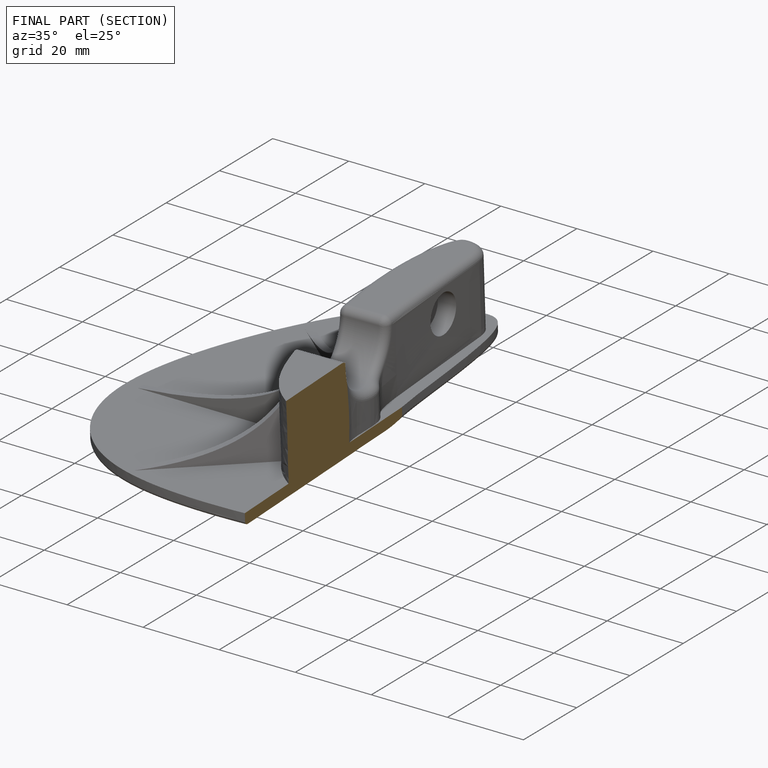
[diagram: finished part — half-section view (interior)]
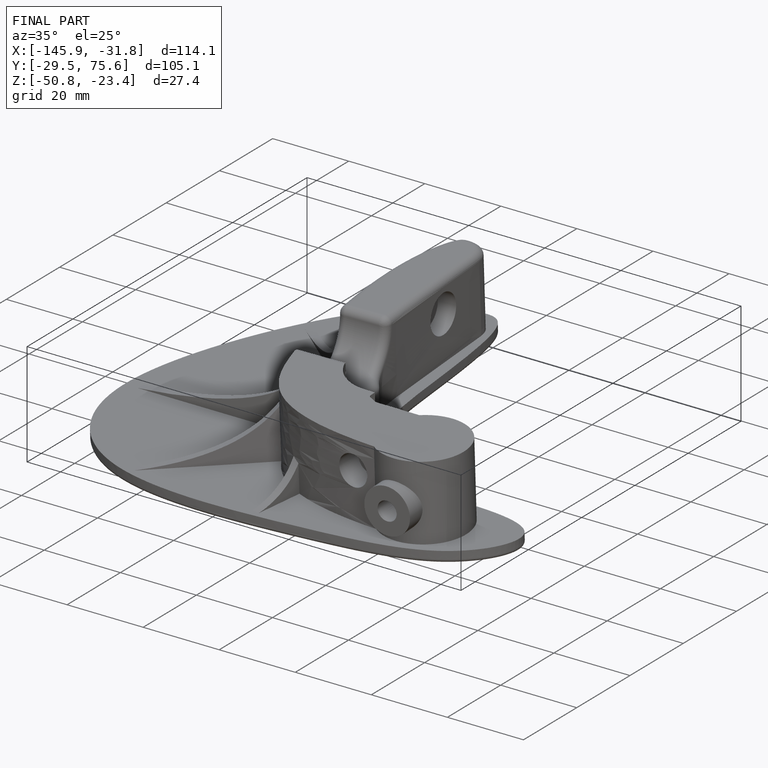
[diagram: finished part — iso view with bounding-box wireframe]
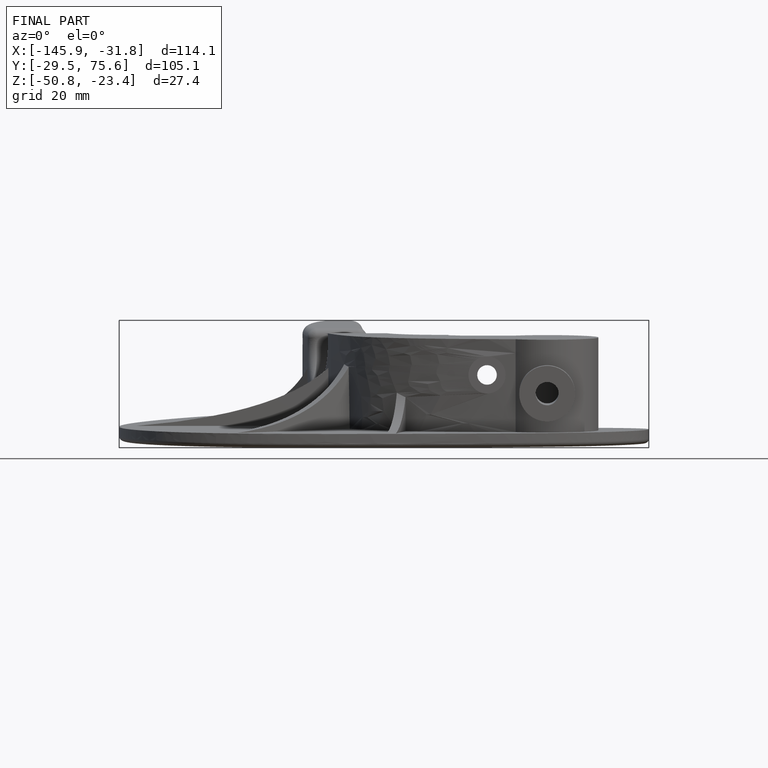
[diagram: finished part — front view with bounding-box wireframe]
